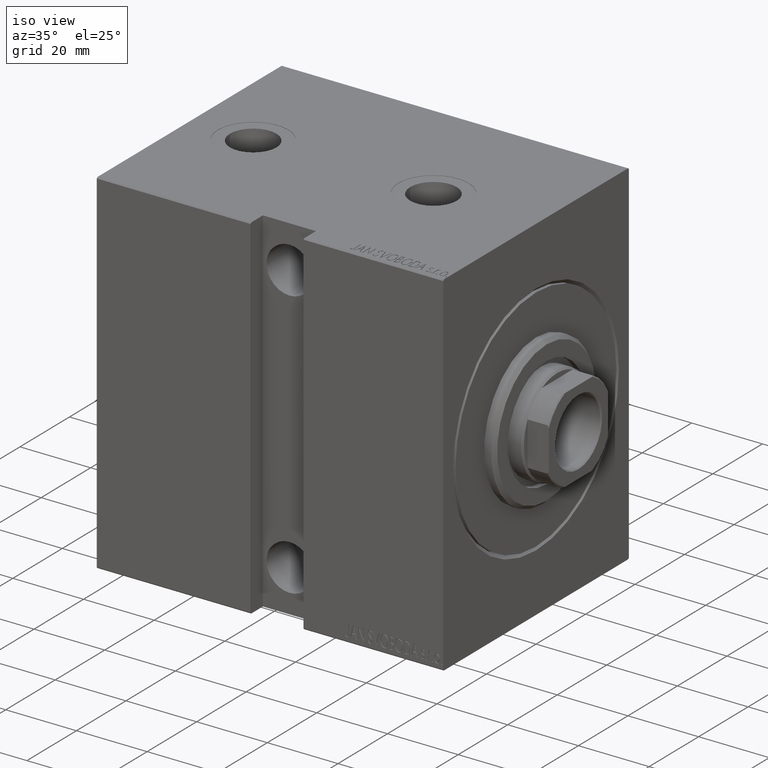
[diagram: clean part render]
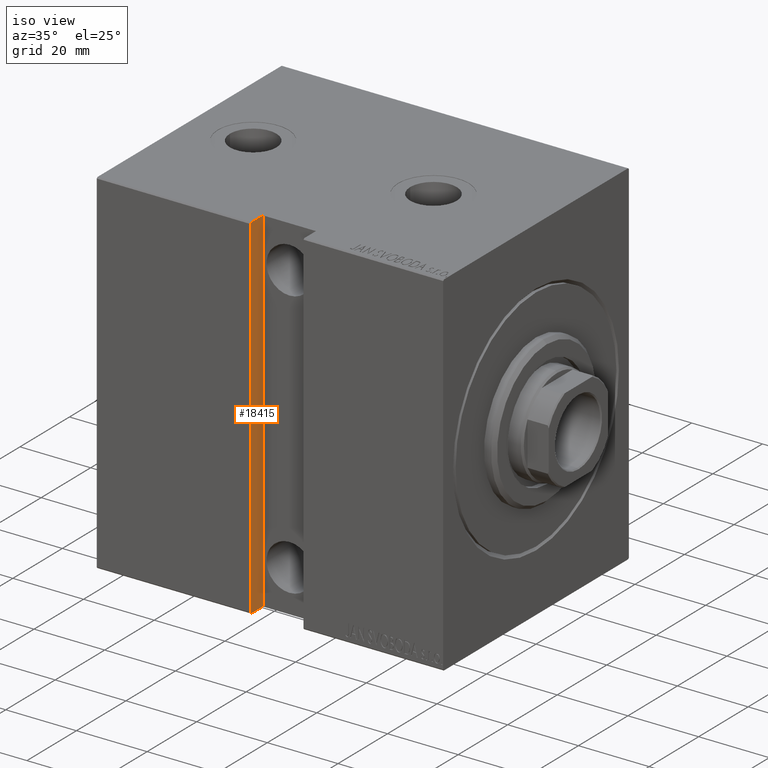
[diagram: same view with one face highlighted and labeled with its STEP entity id]
A machine part, iso view. The second image highlights one B-rep face of the part: STEP entity #18415.
In plain terms, the highlighted planar face has unit normal (-1, 0, -0).
Its self-contained STEP definition (entity closure, byte-faithful):
#473 = CARTESIAN_POINT ( 'NONE',  ( 54.50000000000000000, 37.50000000000000000, -50.00000000000000711 ) ) ;
#1085 = VERTEX_POINT ( 'NONE', #37881 ) ;
#3287 = LINE ( 'NONE', #13099, #3481 ) ;
#3481 = VECTOR ( 'NONE', #40238, 1000.000000000000114 ) ;
#4410 = EDGE_CURVE ( 'NONE', #31327, #42245, #36823, .T. ) ;
#4478 = LINE ( 'NONE', #473, #7581 ) ;
#6017 = EDGE_CURVE ( 'NONE', #40274, #31327, #4478, .T. ) ;
#6089 = DIRECTION ( 'NONE',  ( -9.813077866773479853E-17, -0.7071067811865556774, -0.7071067811865392461 ) ) ;
#6618 = CARTESIAN_POINT ( 'NONE',  ( 54.50000000000000000, 32.50000000000000000, -50.00000000000000711 ) ) ;
#7581 = VECTOR ( 'NONE', #31194, 1000.000000000000000 ) ;
#8671 = ORIENTED_EDGE ( 'NONE', *, *, #6017, .T. ) ;
#10363 = ORIENTED_EDGE ( 'NONE', *, *, #34024, .T. ) ;
#10382 = CARTESIAN_POINT ( 'NONE',  ( 54.50000000000001421, 37.50000000000000000, 49.70000000000000284 ) ) ;
#11592 = ORIENTED_EDGE ( 'NONE', *, *, #12046, .F. ) ;
#12046 = EDGE_CURVE ( 'NONE', #1085, #15403, #17082, .T. ) ;
#13099 = CARTESIAN_POINT ( 'NONE',  ( 54.50000000000001421, 37.19999999999998153, 50.00000000000001421 ) ) ;
#13369 = VECTOR ( 'NONE', #36209, 1000.000000000000000 ) ;
#14167 = VECTOR ( 'NONE', #20642, 1000.000000000000000 ) ;
#14186 = CARTESIAN_POINT ( 'NONE',  ( 54.50000000000001421, 37.19999999999998153, 49.99999999999999289 ) ) ;
#14681 = ORIENTED_EDGE ( 'NONE', *, *, #38295, .F. ) ;
#15231 = CARTESIAN_POINT ( 'NONE',  ( 54.50000000000000000, 32.50000000000000000, -50.00000000000000711 ) ) ;
#15403 = VERTEX_POINT ( 'NONE', #16567 ) ;
#15424 = CARTESIAN_POINT ( 'NONE',  ( 54.50000000000000000, 37.19999999999998863, -50.00000000000000711 ) ) ;
#16567 = CARTESIAN_POINT ( 'NONE',  ( 54.50000000000001421, 32.50000000000000711, -50.00000000000000711 ) ) ;
#16838 = EDGE_LOOP ( 'NONE', ( #8671, #41246, #14681, #11592, #10363, #20462 ) ) ;
#17082 = LINE ( 'NONE', #6618, #14167 ) ;
#18415 = ADVANCED_FACE ( 'NONE', ( #43760 ), #27053, .F. ) ;
#19708 = DIRECTION ( 'NONE',  ( -1.387778780781445676E-16, 0.000000000000000000, -1.000000000000000000 ) ) ;
#19782 = VECTOR ( 'NONE', #29268, 1000.000000000000000 ) ;
#20462 = ORIENTED_EDGE ( 'NONE', *, *, #37347, .T. ) ;
#20642 = DIRECTION ( 'NONE',  ( -1.387778780781445676E-16, -0.000000000000000000, -1.000000000000000000 ) ) ;
#22134 = LINE ( 'NONE', #15231, #19782 ) ;
#23929 = CARTESIAN_POINT ( 'NONE',  ( 54.50000000000000000, 32.50000000000000000, -50.00000000000000711 ) ) ;
#27053 = PLANE ( 'NONE',  #29604 ) ;
#29268 = DIRECTION ( 'NONE',  ( -0.000000000000000000, 1.000000000000000000, -0.000000000000000000 ) ) ;
#29604 = AXIS2_PLACEMENT_3D ( 'NONE', #23929, #43539, #19708 ) ;
#31194 = DIRECTION ( 'NONE',  ( -1.387778780781445676E-16, -0.000000000000000000, -1.000000000000000000 ) ) ;
#31327 = VERTEX_POINT ( 'NONE', #38991 ) ;
#31721 = VECTOR ( 'NONE', #6089, 1000.000000000000114 ) ;
#33859 = VERTEX_POINT ( 'NONE', #14186 ) ;
#34024 = EDGE_CURVE ( 'NONE', #1085, #33859, #39754, .T. ) ;
#36209 = DIRECTION ( 'NONE',  ( -0.000000000000000000, 1.000000000000000000, -0.000000000000000000 ) ) ;
#36608 = CARTESIAN_POINT ( 'NONE',  ( 54.50000000000000000, 37.50000000000000711, -49.70000000000000284 ) ) ;
#36823 = LINE ( 'NONE', #36608, #31721 ) ;
#37347 = EDGE_CURVE ( 'NONE', #33859, #40274, #3287, .T. ) ;
#37881 = CARTESIAN_POINT ( 'NONE',  ( 54.50000000000001421, 32.50000000000000000, 49.99999999999999289 ) ) ;
#38295 = EDGE_CURVE ( 'NONE', #15403, #42245, #22134, .T. ) ;
#38991 = CARTESIAN_POINT ( 'NONE',  ( 54.50000000000000000, 37.50000000000000000, -49.70000000000000284 ) ) ;
#39535 = CARTESIAN_POINT ( 'NONE',  ( 54.50000000000001421, 32.50000000000000000, 49.99999999999999289 ) ) ;
#39754 = LINE ( 'NONE', #39535, #13369 ) ;
#40238 = DIRECTION ( 'NONE',  ( -9.813077866773709115E-17, 0.7071067811865392461, -0.7071067811865556774 ) ) ;
#40274 = VERTEX_POINT ( 'NONE', #10382 ) ;
#41246 = ORIENTED_EDGE ( 'NONE', *, *, #4410, .T. ) ;
#42245 = VERTEX_POINT ( 'NONE', #15424 ) ;
#43539 = DIRECTION ( 'NONE',  ( 1.000000000000000000, 0.000000000000000000, -1.387778780781445676E-16 ) ) ;
#43760 = FACE_OUTER_BOUND ( 'NONE', #16838, .T. ) ;